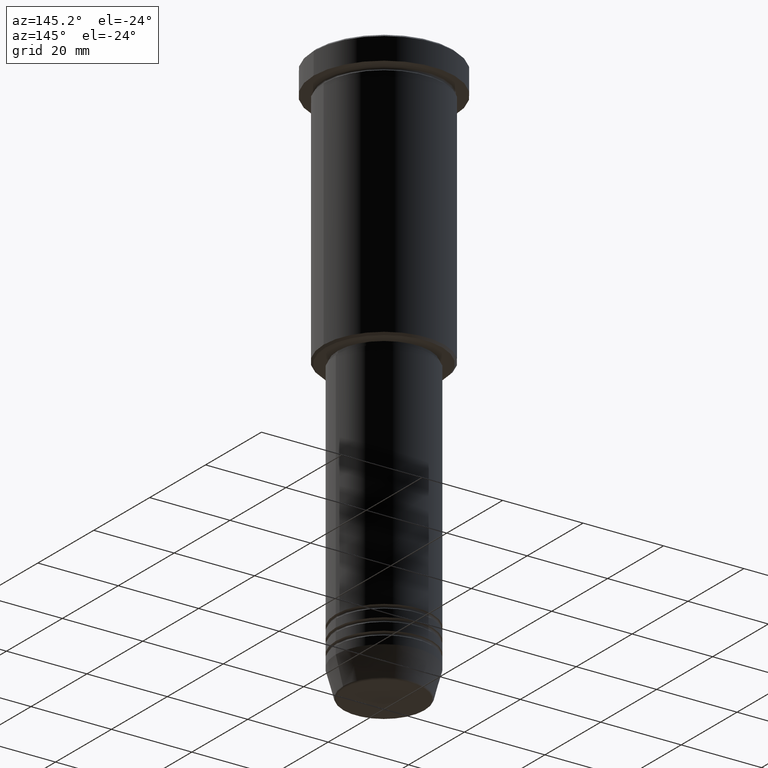
[diagram: clean part render]
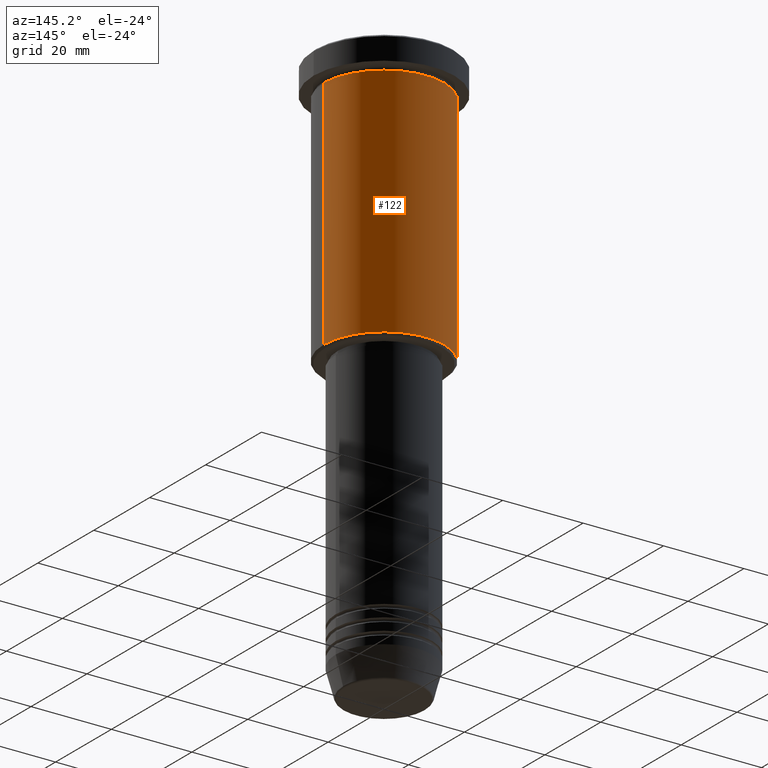
[diagram: same view with one face highlighted and labeled with its STEP entity id]
A machine part, auxiliary view. The second image highlights one B-rep face of the part: STEP entity #122.
In plain terms, the highlighted cylindrical surface (partial cylindrical patch) has radius 15 mm, axis along (-0, -0, 1).
Its self-contained STEP definition (entity closure, byte-faithful):
#46 = EDGE_CURVE ( 'NONE', #924, #947, #679, .T. ) ;
#85 = VERTEX_POINT ( 'NONE', #612 ) ;
#122 = ADVANCED_FACE ( 'NONE', ( #338 ), #248, .T. ) ;
#147 = DIRECTION ( 'NONE',  ( -0.000000000000000000, -0.000000000000000000, 1.000000000000000000 ) ) ;
#201 = EDGE_LOOP ( 'NONE', ( #751, #879, #408, #708 ) ) ;
#204 = DIRECTION ( 'NONE',  ( -0.000000000000000000, -0.000000000000000000, 1.000000000000000000 ) ) ;
#225 = CARTESIAN_POINT ( 'NONE',  ( 15.00000000000000000, 0.000000000000000000, -65.50000000000000000 ) ) ;
#230 = AXIS2_PLACEMENT_3D ( 'NONE', #317, #958, #515 ) ;
#248 = CYLINDRICAL_SURFACE ( 'NONE', #274, 15.00000000000000000 ) ;
#274 = AXIS2_PLACEMENT_3D ( 'NONE', #517, #333, #862 ) ;
#289 = VERTEX_POINT ( 'NONE', #531 ) ;
#317 = CARTESIAN_POINT ( 'NONE',  ( 0.000000000000000000, 0.000000000000000000, -65.50000000000000000 ) ) ;
#333 = DIRECTION ( 'NONE',  ( -0.000000000000000000, -0.000000000000000000, 1.000000000000000000 ) ) ;
#338 = FACE_OUTER_BOUND ( 'NONE', #201, .T. ) ;
#364 = CARTESIAN_POINT ( 'NONE',  ( 15.00000000000000000, 0.000000000000000000, -6.999999999999995559 ) ) ;
#408 = ORIENTED_EDGE ( 'NONE', *, *, #1047, .F. ) ;
#463 = CARTESIAN_POINT ( 'NONE',  ( -15.00000000000000000, 1.836970198721029589E-15, 0.000000000000000000 ) ) ;
#468 = EDGE_CURVE ( 'NONE', #924, #289, #529, .T. ) ;
#515 = DIRECTION ( 'NONE',  ( -1.000000000000000000, 0.000000000000000000, 0.000000000000000000 ) ) ;
#517 = CARTESIAN_POINT ( 'NONE',  ( 0.000000000000000000, 0.000000000000000000, 0.000000000000000000 ) ) ;
#529 = CIRCLE ( 'NONE', #230, 15.00000000000000000 ) ;
#531 = CARTESIAN_POINT ( 'NONE',  ( -15.00000000000000000, 1.836970198721029589E-15, -65.50000000000000000 ) ) ;
#612 = CARTESIAN_POINT ( 'NONE',  ( -15.00000000000000000, 1.836970198721029589E-15, -6.999999999999995559 ) ) ;
#631 = VECTOR ( 'NONE', #147, 1000.000000000000000 ) ;
#679 = LINE ( 'NONE', #757, #631 ) ;
#691 = VECTOR ( 'NONE', #1093, 1000.000000000000000 ) ;
#708 = ORIENTED_EDGE ( 'NONE', *, *, #46, .F. ) ;
#721 = LINE ( 'NONE', #463, #691 ) ;
#730 = CIRCLE ( 'NONE', #1176, 15.00000000000000000 ) ;
#731 = CARTESIAN_POINT ( 'NONE',  ( 0.000000000000000000, 0.000000000000000000, -6.999999999999995559 ) ) ;
#751 = ORIENTED_EDGE ( 'NONE', *, *, #468, .T. ) ;
#755 = EDGE_CURVE ( 'NONE', #289, #85, #721, .T. ) ;
#757 = CARTESIAN_POINT ( 'NONE',  ( 15.00000000000000000, 0.000000000000000000, 0.000000000000000000 ) ) ;
#862 = DIRECTION ( 'NONE',  ( 1.000000000000000000, 0.000000000000000000, 0.000000000000000000 ) ) ;
#879 = ORIENTED_EDGE ( 'NONE', *, *, #755, .T. ) ;
#907 = DIRECTION ( 'NONE',  ( 1.000000000000000000, 0.000000000000000000, 0.000000000000000000 ) ) ;
#924 = VERTEX_POINT ( 'NONE', #225 ) ;
#947 = VERTEX_POINT ( 'NONE', #364 ) ;
#958 = DIRECTION ( 'NONE',  ( -0.000000000000000000, -0.000000000000000000, 1.000000000000000000 ) ) ;
#1047 = EDGE_CURVE ( 'NONE', #947, #85, #730, .T. ) ;
#1093 = DIRECTION ( 'NONE',  ( -0.000000000000000000, -0.000000000000000000, 1.000000000000000000 ) ) ;
#1176 = AXIS2_PLACEMENT_3D ( 'NONE', #731, #204, #907 ) ;